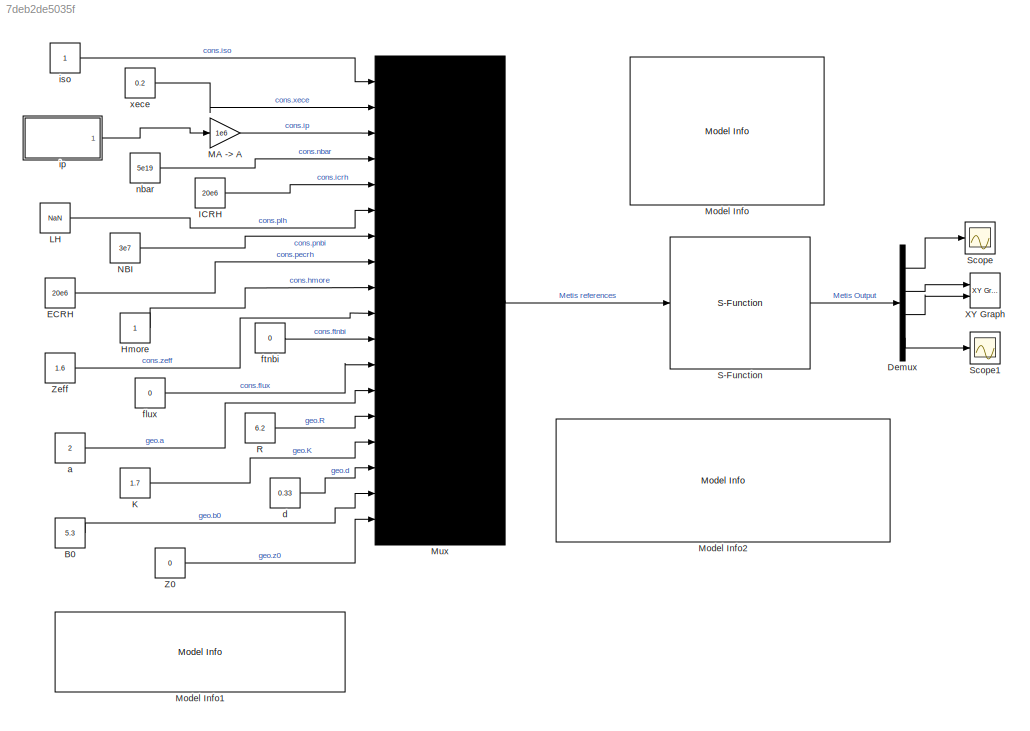
MODEL slx_7deb2de5035f
KIND model
BLOCK [Constant] B0
  Value = 5.3
BLOCK [Demux] Demux
  DisplayOption = bar
  Ports = [1, 4]
BLOCK [Constant] ECRH
  Value = 20e6
BLOCK [Constant] Hmore
BLOCK [Constant] ICRH
  Value = 20e6
BLOCK [Constant] K
  Value = 1.7
BLOCK [Constant] LH
  Value = NaN
BLOCK [Gain] MA -> A
  Gain = 1e6
  OutDataTypeStr = Inherit: Inherit via internal rule
  ParamDataTypeStr = Inherit: Inherit via internal rule
  SaturateOnIntegerOverflow = off
BLOCK [Reference] Model Info  REF=simulink/Model-Wide
Utilities/Model Info
  BlockCM = None
  DisplayStringWithTags = SimMetis : metis sfunction interface\n%<Created>\n%<ModifiedBy>\n%<ModifiedDate>\n%<ModifiedComment>\n%<Description>
  Frame = on
  HorizontalTextAlignment = Center
  InitialBlockCM = None
  LeftAlignmentValue = 0.5
  MaskDisplayString = SimMetis : metis sfunction interface\nMon Oct  8 10:09:24 2007\nJA132999\nTue Mar 14 12:49:55 2017\n\n
  Ports = []
  SourceBlock = simulink/Model-Wide\nUtilities/Model Info
  SourceBlockDiagram = test_simmetis_2015b
  SourceType = CMBlock
  TagMaxNumber = 20
BLOCK [Reference] Model Info1  REF=simulink/Model-Wide
Utilities/Model Info
  BlockCM = None
  DisplayStringWithTags = when an input is set to NaN, \nthe correspondant reference value\nis read from Metis file (or data) \nand linearely interpolate in time.
  Frame = on
  HorizontalTextAlignment = Center
  InitialBlockCM = None
  LeftAlignmentValue = 0.5
  MaskDisplayString = when an input is set to NaN, \nthe correspondant reference value\nis read from Metis file (or data) \nand linearely interpolate in time.
  Ports = []
  SourceBlock = simulink/Model-Wide\nUtilities/Model Info
  SourceBlockDiagram = test_simmetis_2015b
  SourceType = CMBlock
  TagMaxNumber = 20
BLOCK [Reference] Model Info2  REF=simulink/Model-Wide
Utilities/Model Info
  BlockCM = None
  DisplayStringWithTags = Simmetis parameters :\n* Metis_file_name : used to parametring Metis in simmetis \n(if empty used z0dinput in workspace,\n that allow to tune simulation configuration form Metis interface)\n* list_output : cell array of output names\n* save_file : results filename (optionnel)\n* verbose  : if = 1 turn on information writing
  Frame = on
  HorizontalTextAlignment = Left
  InitialBlockCM = None
  LeftAlignmentValue = 0.02
  MaskDisplayString = Simmetis parameters :\n* Metis_file_name : used to parametring Metis in simmetis \n(if empty used z0dinput in workspace,\n that allow to tune simulation configuration form Metis interface)\n* list_output : cell array of output names\n* save_file : results filename (optionnel)\n* verbose  : if = 1 turn on information writing
  Ports = []
  SourceBlock = simulink/Model-Wide\nUtilities/Model Info
  SourceBlockDiagram = test_simmetis_2015b
  SourceType = CMBlock
  TagMaxNumber = 20
BLOCK [Mux] Mux
  DisplayOption = signals
  Inputs = 18
  Ports = [18, 1]
BLOCK [Constant] NBI
  Value = 3e7
BLOCK [Constant] R
  Value = 6.2
BLOCK [S-Function] S-Function
  EnableBusSupport = off
  FunctionName = simmetis
  Parameters = 'test_simmetis.mat',{'te0','qjli@[5,10]','pfus'},'test_save',1
  Ports = [1, 1]
BLOCK [Scope] Scope
  DataFormat = StructureWithTime
  Floating = off
  NumInputPorts = 1
  Ports = [1]
  SampleTime = 0
  ShowLegends = off
  YMax = 70000
  YMin = 25000
BLOCK [Scope] Scope1
  DataFormat = StructureWithTime
  Floating = off
  NumInputPorts = 1
  Ports = [1]
  SampleTime = 0
  SaveName = ScopeData1
  ShowLegends = off
  YMax = 4.75e+07
  YMin = 2e+07
BLOCK [Reference] XY Graph  REF=simulink/Sinks/XY Graph
  Ports = [2]
  SourceBlock = simulink/Sinks/XY Graph
  SourceType = XY scope.
  st = -1
  xmax = 3
  xmin = 0.5
  ymax = 3
  ymin = 0.5
BLOCK [Constant] Z0
  Value = 0
BLOCK [Constant] Zeff
  Value = 1.6
BLOCK [Constant] a
  Value = 2
BLOCK [Constant] d
  Value = 0.33
BLOCK [Constant] flux
  Value = 0
BLOCK [Constant] ftnbi
  Value = 0
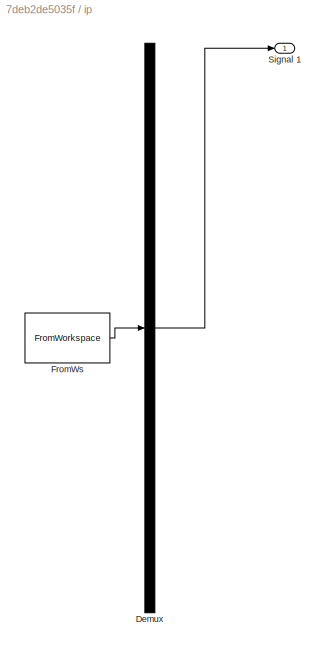
BLOCK [SubSystem] ip
  ClipboardFcn = sigbuilder_block('clipboard');
  CloseFcn = sigbuilder_block('close');
  ContinueFcn = sigbuilder_block('continue')
  CopyFcn = sigbuilder_block('copy');
  DeleteFcn = sigbuilder_block('delete');
  FunctionWithSeparateData = off
  LoadFcn = sigbuilder_block('load');
  MaskHideContents = on
  MinAlgLoopOccurrences = off
  ModelCloseFcn = sigbuilder_block('modelClose');
  NameChangeFcn = sigbuilder_block('namechange');
  Opaque = off
  OpenFcn = sigbuilder_block('open',[307.482 208.376 615.812 404.894 ]);
  PauseFcn = sigbuilder_block('pause')
  Ports = [0, 1]
  PreSaveFcn = sigbuilder_block('preSave');
  PropExecContextOutsideSubsystem = off
  RTWSystemCode = Auto
  RequestExecContextInheritance = off
  StartFcn = sigbuilder_block('start');
  StopFcn = sigbuilder_block('stop');
  Tag = STV Subsys
BLOCK [Demux] ip/Demux
  Outputs = 1
  Ports = [1, 1]
  Tag = STV Demux
BLOCK [FromWorkspace] ip/FromWs
  SampleTime = 0
  Tag = STV FromWs
  VariableName = tuvar
  ZeroCross = on
BLOCK [Outport] ip/Signal 1
  IconDisplay = Port number
  Tag = STV Outport
BLOCK [Constant] iso
BLOCK [Constant] nbar
  Value = 5e19
BLOCK [Constant] xece
  Value = 0.2
LINE B0:1 -> Mux:17
LINE Demux:1 -> Scope:1
LINE Demux:2 -> XY Graph:1
LINE Demux:3 -> XY Graph:2
LINE Demux:4 -> Scope1:1
LINE ECRH:1 -> Mux:8
LINE Hmore:1 -> Mux:9
LINE ICRH:1 -> Mux:5
LINE K:1 -> Mux:15
LINE LH:1 -> Mux:6
LINE MA -> A:1 -> Mux:3
LINE Mux:1 -> S-Function:1
LINE NBI:1 -> Mux:7
LINE R:1 -> Mux:14
LINE S-Function:1 -> Demux:1
LINE Z0:1 -> Mux:18
LINE Zeff:1 -> Mux:10
LINE a:1 -> Mux:13
LINE d:1 -> Mux:16
LINE flux:1 -> Mux:12
LINE ftnbi:1 -> Mux:11
LINE ip/Demux:1 -> ip/Signal 1:1
LINE ip/FromWs:1 -> ip/Demux:1
LINE ip:1 -> MA -> A:1
LINE iso:1 -> Mux:1
LINE nbar:1 -> Mux:4
LINE xece:1 -> Mux:2
